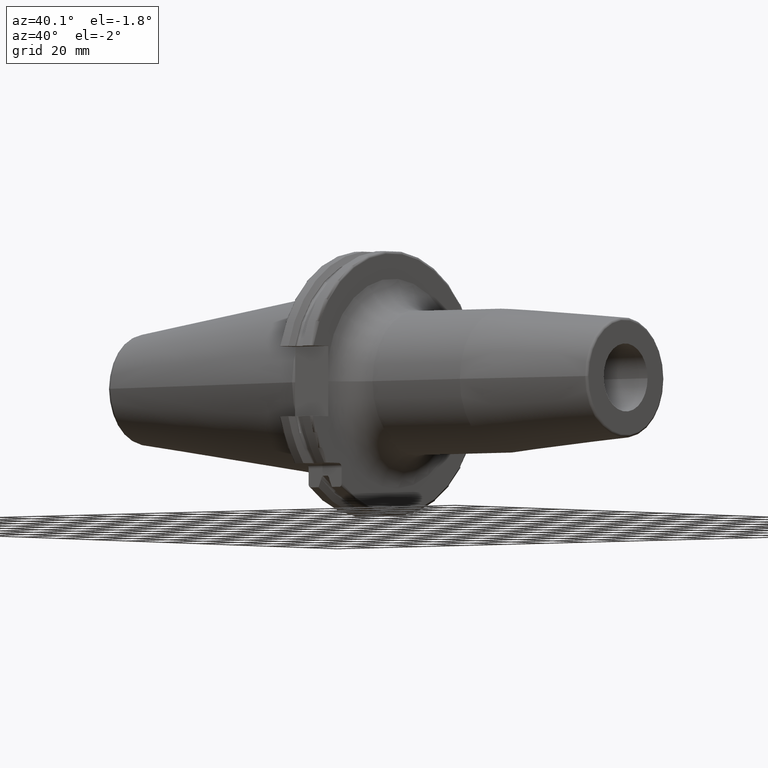
[diagram: clean part render]
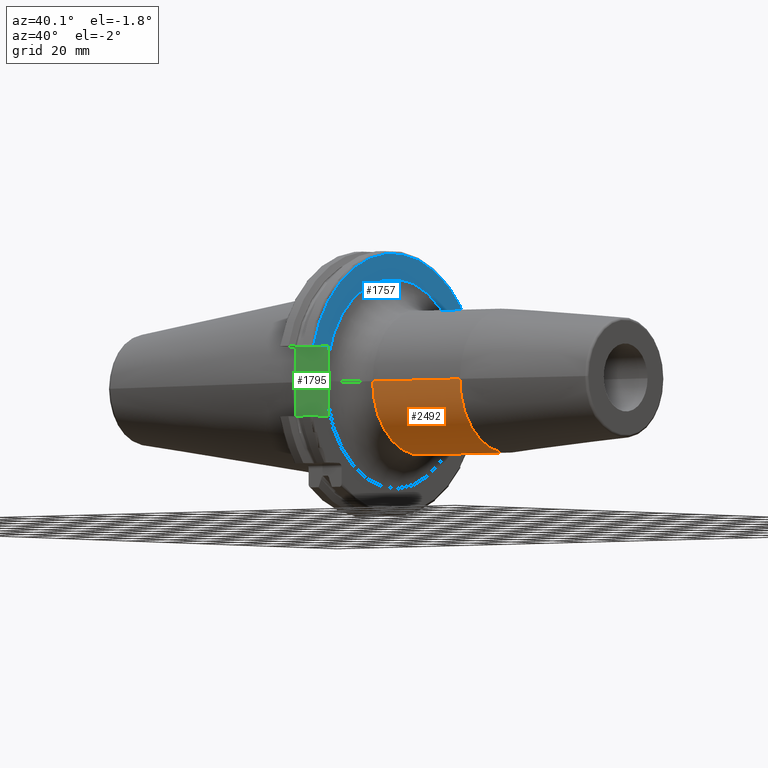
[diagram: same view with three faces highlighted in distinct colors, each labeled with its STEP entity id]
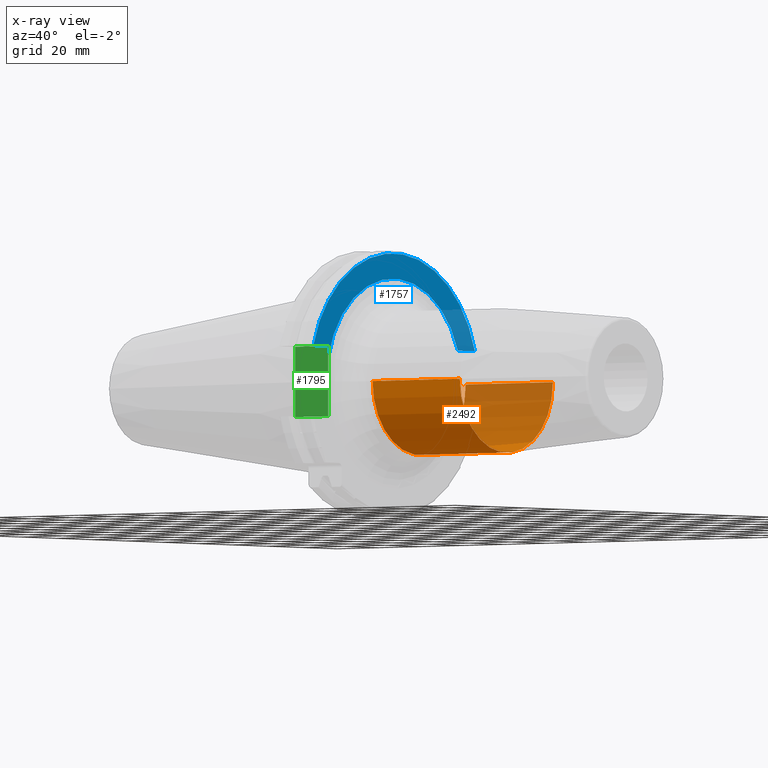
[diagram: x-ray of the same camera — body ghosted, the three highlighted faces saturated]
A machine part, auxiliary view with three faces highlighted in distinct colors.
The next image is the same camera in x-ray (body ghosted, the three faces saturated) — at least one of them is partly hidden behind the body in this view.
Their STEP definitions:

[orange] entity #2492 — the highlighted cylindrical surface (partial cylindrical patch) has radius 26.5 mm, axis along (1, 0, 0).
#962=CARTESIAN_POINT('',(3.105E1,0.E0,0.E0));
#963=DIRECTION('',(1.E0,0.E0,0.E0));
#964=DIRECTION('',(0.E0,-1.E0,0.E0));
#965=AXIS2_PLACEMENT_3D('',#962,#963,#964);
#967=DIRECTION('',(-9.999999992300E-1,2.427432378256E-9,-3.924221130613E-5));
#968=VECTOR('',#967,4.177207871938E1);
#969=CARTESIAN_POINT('',(7.282207868721E1,-2.65E1,0.E0));
#970=LINE('',#969,#968);
#971=CARTESIAN_POINT('',(7.282207868721E1,0.E0,0.E0));
#972=DIRECTION('',(-1.E0,0.E0,0.E0));
#973=DIRECTION('',(0.E0,1.E0,0.E0));
#974=AXIS2_PLACEMENT_3D('',#971,#972,#973);
#976=DIRECTION('',(-9.999999992300E-1,-2.427432378256E-9,3.924221130611E-5));
#977=VECTOR('',#976,4.177207871938E1);
#978=CARTESIAN_POINT('',(7.282207868721E1,2.65E1,0.E0));
#979=LINE('',#978,#977);
#1472=CARTESIAN_POINT('',(7.282207868721E1,2.65E1,0.E0));
#1473=CARTESIAN_POINT('',(7.282207868721E1,-2.65E1,0.E0));
#1474=VERTEX_POINT('',#1472);
#1475=VERTEX_POINT('',#1473);
#1488=CARTESIAN_POINT('',(3.105E1,-2.65E1,0.E0));
#1489=CARTESIAN_POINT('',(3.105E1,2.65E1,0.E0));
#1490=VERTEX_POINT('',#1488);
#1491=VERTEX_POINT('',#1489);
#2480=CARTESIAN_POINT('',(1.35025E1,0.E0,0.E0));
#2481=DIRECTION('',(1.E0,0.E0,0.E0));
#2482=DIRECTION('',(0.E0,-1.E0,0.E0));
#2483=AXIS2_PLACEMENT_3D('',#2480,#2481,#2482);
#2484=CYLINDRICAL_SURFACE('',#2483,2.65E1);
#2485=ORIENTED_EDGE('',*,*,#1768,.F.);
#2486=ORIENTED_EDGE('',*,*,#2475,.F.);
#2488=ORIENTED_EDGE('',*,*,#2487,.F.);
#2489=ORIENTED_EDGE('',*,*,#2471,.T.);
#2490=EDGE_LOOP('',(#2485,#2486,#2488,#2489));
#2491=FACE_OUTER_BOUND('',#2490,.F.);
#2492=ADVANCED_FACE('',(#2491),#2484,.T.);
#966=CIRCLE('',#965,2.65E1);
#975=CIRCLE('',#974,2.65E1);
#1768=EDGE_CURVE('',#1490,#1491,#966,.T.);
#2471=EDGE_CURVE('',#1474,#1491,#979,.T.);
#2475=EDGE_CURVE('',#1475,#1490,#970,.T.);
#2487=EDGE_CURVE('',#1474,#1475,#975,.T.);

[blue] entity #1757 — the highlighted planar face has unit normal (1, 0, 0).
#151=CARTESIAN_POINT('',(1.905E1,0.E0,0.E0));
#152=DIRECTION('',(1.E0,0.E0,0.E0));
#153=DIRECTION('',(0.E0,9.421950764359E-1,3.350648264739E-1));
#154=AXIS2_PLACEMENT_3D('',#151,#152,#153);
#156=DIRECTION('',(0.E0,-3.957597564590E-6,9.999999999922E-1));
#157=VECTOR('',#156,4.181167110511E0);
#158=CARTESIAN_POINT('',(1.905E1,-3.749998345262E1,8.718832889522E0));
#159=LINE('',#158,#157);
#160=DIRECTION('',(0.E0,1.E0,0.E0));
#161=VECTOR('',#160,8.461493733886E0);
#162=CARTESIAN_POINT('',(1.905E1,-4.596149373389E1,1.29E1));
#163=LINE('',#162,#161);
#164=DIRECTION('',(0.E0,-9.999999999880E-1,4.896903625432E-6));
#165=VECTOR('',#164,9.686997233145E0);
#166=CARTESIAN_POINT('',(1.905E1,4.596149373389E1,1.29E1));
#167=LINE('',#166,#165);
#232=CARTESIAN_POINT('',(1.905E1,4.596149373389E1,1.29E1));
#243=CARTESIAN_POINT('',(1.905E1,0.E0,0.E0));
#244=DIRECTION('',(1.E0,0.E0,0.E0));
#245=DIRECTION('',(0.E0,9.627964123359E-1,2.702278083268E-1));
#246=AXIS2_PLACEMENT_3D('',#243,#244,#245);
#1378=CARTESIAN_POINT('',(1.905E1,-4.596149373389E1,1.29E1));
#1379=CARTESIAN_POINT('',(1.905E1,-3.75E1,1.29E1));
#1380=VERTEX_POINT('',#1378);
#1381=VERTEX_POINT('',#1379);
#1419=VERTEX_POINT('',#232);
#1492=CARTESIAN_POINT('',(1.905E1,3.627451044278E1,1.289999581925E1));
#1493=CARTESIAN_POINT('',(1.905E1,-3.749936218230E1,8.720541033701E0));
#1494=VERTEX_POINT('',#1492);
#1495=VERTEX_POINT('',#1493);
#1740=CARTESIAN_POINT('',(1.905E1,0.E0,0.E0));
#1741=DIRECTION('',(1.E0,0.E0,0.E0));
#1742=DIRECTION('',(0.E0,-1.E0,0.E0));
#1743=AXIS2_PLACEMENT_3D('',#1740,#1741,#1742);
#1744=PLANE('',#1743);
#1746=ORIENTED_EDGE('',*,*,#1745,.T.);
#1748=ORIENTED_EDGE('',*,*,#1747,.T.);
#1750=ORIENTED_EDGE('',*,*,#1749,.F.);
#1752=ORIENTED_EDGE('',*,*,#1751,.F.);
#1754=ORIENTED_EDGE('',*,*,#1753,.T.);
#1755=EDGE_LOOP('',(#1746,#1748,#1750,#1752,#1754));
#1756=FACE_OUTER_BOUND('',#1755,.F.);
#1757=ADVANCED_FACE('',(#1756),#1744,.T.);
#155=CIRCLE('',#154,3.85E1);
#247=CIRCLE('',#246,4.77375E1);
#1745=EDGE_CURVE('',#1494,#1495,#155,.T.);
#1747=EDGE_CURVE('',#1495,#1381,#159,.T.);
#1749=EDGE_CURVE('',#1380,#1381,#163,.T.);
#1751=EDGE_CURVE('',#1419,#1380,#247,.T.);
#1753=EDGE_CURVE('',#1419,#1494,#167,.T.);

[green] entity #1795 — the highlighted planar face has unit normal (0, 1, 0).
#147=DIRECTION('',(0.E0,1.175596282797E-6,9.999999999993E-1));
#148=VECTOR('',#147,4.181993793624E0);
#149=CARTESIAN_POINT('',(1.905E1,-3.75E1,-1.29E1));
#150=LINE('',#149,#148);
#156=DIRECTION('',(0.E0,-3.957597564590E-6,9.999999999922E-1));
#157=VECTOR('',#156,4.181167110511E0);
#158=CARTESIAN_POINT('',(1.905E1,-3.749998345262E1,8.718832889522E0));
#159=LINE('',#158,#157);
#168=CARTESIAN_POINT('',(1.909173923321E1,-3.75E1,-4.609148908321E-3));
#169=CARTESIAN_POINT('',(1.909173257439E1,-3.75E1,-6.524612713159E-1));
#170=CARTESIAN_POINT('',(1.908878751441E1,-3.750000017558E1,-1.973005974719E0));
#171=CARTESIAN_POINT('',(1.907662175047E1,-3.749999938546E1,-3.981108997934E0));
#172=CARTESIAN_POINT('',(1.905945285205E1,-3.750000228258E1,-6.158205015502E0));
#173=CARTESIAN_POINT('',(1.905E1,-3.749999508366E1,-7.833713653429E0));
#174=CARTESIAN_POINT('',(1.905E1,-3.749999508366E1,-8.718006206379E0));
#196=DIRECTION('',(-1.E0,0.E0,0.E0));
#197=VECTOR('',#196,1.585E1);
#198=CARTESIAN_POINT('',(1.905E1,-3.75E1,-1.29E1));
#199=LINE('',#198,#197);
#220=CARTESIAN_POINT('',(1.905E1,-3.749998345262E1,8.718832889522E0));
#221=CARTESIAN_POINT('',(1.905E1,-3.749998345262E1,7.832933292564E0));
#222=CARTESIAN_POINT('',(1.905948438553E1,-3.750000768271E1,6.153500017850E0));
#223=CARTESIAN_POINT('',(1.907667275755E1,-3.749999793158E1,3.974532629768E0));
#224=CARTESIAN_POINT('',(1.908882413565E1,-3.750000059098E1,1.965011639233E0));
#225=CARTESIAN_POINT('',(1.909174589594E1,-3.75E1,6.436229094288E-1));
#226=CARTESIAN_POINT('',(1.909173923321E1,-3.75E1,-4.609148908321E-3));
#259=DIRECTION('',(-1.E0,0.E0,0.E0));
#260=VECTOR('',#259,1.585E1);
#261=CARTESIAN_POINT('',(1.905E1,-3.75E1,1.29E1));
#262=LINE('',#261,#260);
#537=DIRECTION('',(0.E0,0.E0,1.E0));
#538=VECTOR('',#537,2.58E1);
#539=CARTESIAN_POINT('',(3.2E0,-3.75E1,-1.29E1));
#540=LINE('',#539,#538);
#1375=CARTESIAN_POINT('',(1.905E1,-3.75E1,-1.29E1));
#1377=VERTEX_POINT('',#1375);
#1379=CARTESIAN_POINT('',(1.905E1,-3.75E1,1.29E1));
#1381=VERTEX_POINT('',#1379);
#1403=CARTESIAN_POINT('',(3.2E0,-3.75E1,-1.29E1));
#1405=VERTEX_POINT('',#1403);
#1406=CARTESIAN_POINT('',(3.2E0,-3.75E1,1.29E1));
#1407=VERTEX_POINT('',#1406);
#1484=CARTESIAN_POINT('',(1.905E1,-3.749987615186E1,-8.718330608288E0));
#1486=VERTEX_POINT('',#1484);
#1493=CARTESIAN_POINT('',(1.905E1,-3.749936218230E1,8.720541033701E0));
#1495=VERTEX_POINT('',#1493);
#1507=VERTEX_POINT('',#226);
#1777=CARTESIAN_POINT('',(1.905E1,-3.75E1,-1.29E1));
#1778=DIRECTION('',(0.E0,1.E0,0.E0));
#1779=DIRECTION('',(0.E0,0.E0,1.E0));
#1780=AXIS2_PLACEMENT_3D('',#1777,#1778,#1779);
#1781=PLANE('',#1780);
#1782=ORIENTED_EDGE('',*,*,#1747,.F.);
#1784=ORIENTED_EDGE('',*,*,#1783,.T.);
#1785=ORIENTED_EDGE('',*,*,#1764,.T.);
#1786=ORIENTED_EDGE('',*,*,#1735,.F.);
#1788=ORIENTED_EDGE('',*,*,#1787,.T.);
#1790=ORIENTED_EDGE('',*,*,#1789,.T.);
#1792=ORIENTED_EDGE('',*,*,#1791,.F.);
#1793=EDGE_LOOP('',(#1782,#1784,#1785,#1786,#1788,#1790,#1792));
#1794=FACE_OUTER_BOUND('',#1793,.F.);
#1795=ADVANCED_FACE('',(#1794),#1781,.F.);
#175=B_SPLINE_CURVE_WITH_KNOTS('',3,(#168,#169,#170,#171,#172,#173,#174),
.UNSPECIFIED.,.F.,.F.,(4,1,1,1,4),(0.E0,2.5E-1,5.E-1,7.5E-1,1.E0),
.UNSPECIFIED.);
#227=B_SPLINE_CURVE_WITH_KNOTS('',3,(#220,#221,#222,#223,#224,#225,#226),
.UNSPECIFIED.,.F.,.F.,(4,1,1,1,4),(0.E0,2.5E-1,5.E-1,7.5E-1,1.E0),
.UNSPECIFIED.);
#1735=EDGE_CURVE('',#1377,#1486,#150,.T.);
#1747=EDGE_CURVE('',#1495,#1381,#159,.T.);
#1764=EDGE_CURVE('',#1507,#1486,#175,.T.);
#1783=EDGE_CURVE('',#1495,#1507,#227,.T.);
#1787=EDGE_CURVE('',#1377,#1405,#199,.T.);
#1789=EDGE_CURVE('',#1405,#1407,#540,.T.);
#1791=EDGE_CURVE('',#1381,#1407,#262,.T.);